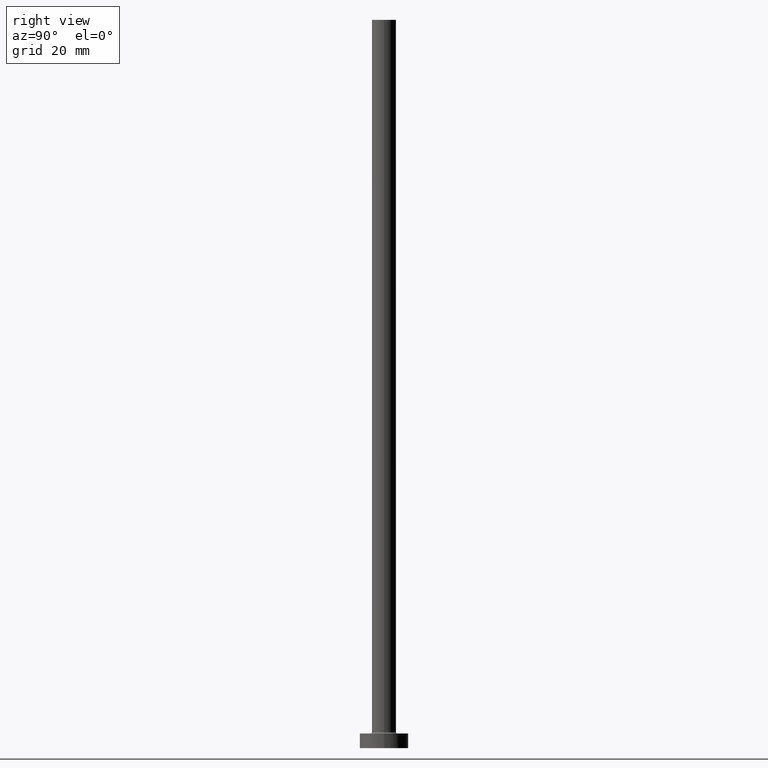
[diagram: clean part render]
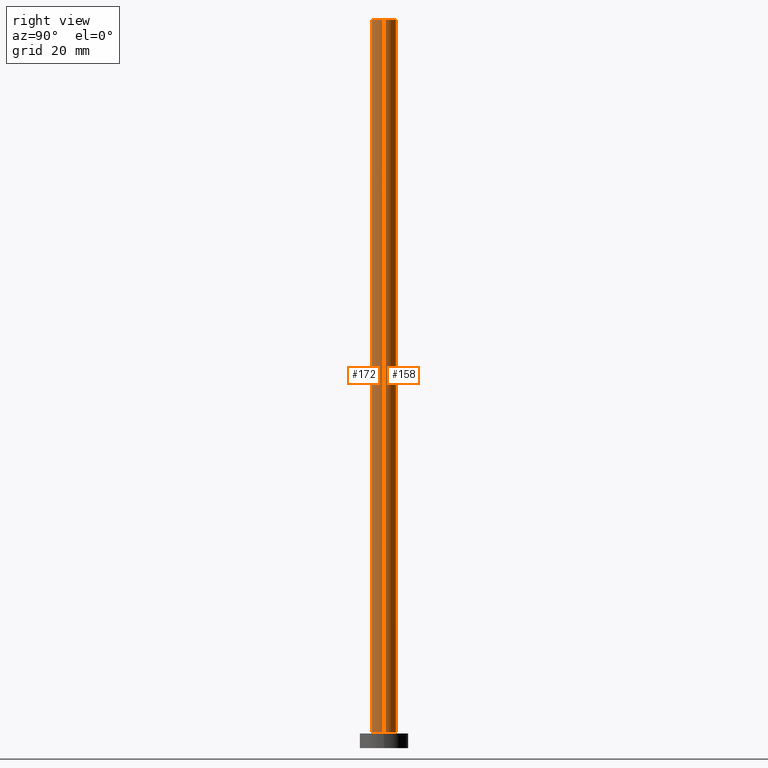
[diagram: same view with one multi-face feature highlighted, each face labeled with its STEP entity id]
A machine part, right view. The highlighted faces form ONE feature: a constant-radius fillet chain: 2 tangent blend faces with common blend radius 2.5 mm. The faces share edges in the B-rep.
Their STEP definitions:
[1] entity #172 (Cylinder):
#2 = DIRECTION ( 'NONE',  ( 0.000000000000000000, 0.000000000000000000, 1.000000000000000000 ) ) ;
#3 = VECTOR ( 'NONE', #459, 1000.000000000000000 ) ;
#9 = CARTESIAN_POINT ( 'NONE',  ( 0.000000000000000000, 0.000000000000000000, 150.0000000000000000 ) ) ;
#30 = DIRECTION ( 'NONE',  ( -1.000000000000000000, 0.000000000000000000, 0.000000000000000000 ) ) ;
#52 = ORIENTED_EDGE ( 'NONE', *, *, #342, .T. ) ;
#67 = CYLINDRICAL_SURFACE ( 'NONE', #70, 2.500000000000000000 ) ;
#70 = AXIS2_PLACEMENT_3D ( 'NONE', #202, #343, #30 ) ;
#87 = LINE ( 'NONE', #220, #119 ) ;
#111 = ORIENTED_EDGE ( 'NONE', *, *, #303, .F. ) ;
#119 = VECTOR ( 'NONE', #242, 1000.000000000000000 ) ;
#140 = DIRECTION ( 'NONE',  ( 1.000000000000000000, 0.000000000000000000, 0.000000000000000000 ) ) ;
#159 = AXIS2_PLACEMENT_3D ( 'NONE', #9, #315, #215 ) ;
#172 = ADVANCED_FACE ( 'NONE', ( #301 ), #67, .T. ) ;
#174 = CARTESIAN_POINT ( 'NONE',  ( 0.000000000000000000, 0.000000000000000000, 3.299999999999997158 ) ) ;
#178 = ORIENTED_EDGE ( 'NONE', *, *, #372, .F. ) ;
#202 = CARTESIAN_POINT ( 'NONE',  ( 0.000000000000000000, 0.000000000000000000, 150.0000000000000000 ) ) ;
#209 = CARTESIAN_POINT ( 'NONE',  ( -2.500000000000000000, 0.000000000000000000, 3.299999999999997158 ) ) ;
#210 = CARTESIAN_POINT ( 'NONE',  ( 2.500000000000000000, 3.061616997868383141E-16, 3.299999999999997158 ) ) ;
#215 = DIRECTION ( 'NONE',  ( 1.000000000000000000, 0.000000000000000000, 0.000000000000000000 ) ) ;
#217 = LINE ( 'NONE', #325, #3 ) ;
#220 = CARTESIAN_POINT ( 'NONE',  ( 2.500000000000000000, 3.061616997868383141E-16, 150.0000000000000000 ) ) ;
#242 = DIRECTION ( 'NONE',  ( -0.000000000000000000, -0.000000000000000000, -1.000000000000000000 ) ) ;
#275 = VERTEX_POINT ( 'NONE', #389 ) ;
#301 = FACE_OUTER_BOUND ( 'NONE', #386, .T. ) ;
#302 = CIRCLE ( 'NONE', #159, 2.500000000000000000 ) ;
#303 = EDGE_CURVE ( 'NONE', #275, #443, #302, .T. ) ;
#309 = EDGE_CURVE ( 'NONE', #275, #316, #217, .T. ) ;
#315 = DIRECTION ( 'NONE',  ( 0.000000000000000000, 0.000000000000000000, 1.000000000000000000 ) ) ;
#316 = VERTEX_POINT ( 'NONE', #209 ) ;
#325 = CARTESIAN_POINT ( 'NONE',  ( -2.500000000000000000, 0.000000000000000000, 150.0000000000000000 ) ) ;
#341 = CIRCLE ( 'NONE', #403, 2.500000000000000000 ) ;
#342 = EDGE_CURVE ( 'NONE', #316, #383, #341, .T. ) ;
#343 = DIRECTION ( 'NONE',  ( -0.000000000000000000, -0.000000000000000000, -1.000000000000000000 ) ) ;
#372 = EDGE_CURVE ( 'NONE', #443, #383, #87, .T. ) ;
#383 = VERTEX_POINT ( 'NONE', #210 ) ;
#386 = EDGE_LOOP ( 'NONE', ( #178, #111, #390, #52 ) ) ;
#389 = CARTESIAN_POINT ( 'NONE',  ( -2.500000000000000000, 0.000000000000000000, 150.0000000000000000 ) ) ;
#390 = ORIENTED_EDGE ( 'NONE', *, *, #309, .T. ) ;
#403 = AXIS2_PLACEMENT_3D ( 'NONE', #174, #2, #140 ) ;
#433 = CARTESIAN_POINT ( 'NONE',  ( 2.500000000000000000, 3.061616997868383141E-16, 150.0000000000000000 ) ) ;
#443 = VERTEX_POINT ( 'NONE', #433 ) ;
#459 = DIRECTION ( 'NONE',  ( -0.000000000000000000, -0.000000000000000000, -1.000000000000000000 ) ) ;
[2] entity #158 (Cylinder):
#3 = VECTOR ( 'NONE', #459, 1000.000000000000000 ) ;
#11 = AXIS2_PLACEMENT_3D ( 'NONE', #151, #441, #405 ) ;
#50 = DIRECTION ( 'NONE',  ( 1.000000000000000000, 0.000000000000000000, 0.000000000000000000 ) ) ;
#63 = DIRECTION ( 'NONE',  ( -0.000000000000000000, -0.000000000000000000, -1.000000000000000000 ) ) ;
#75 = EDGE_CURVE ( 'NONE', #443, #275, #101, .T. ) ;
#77 = DIRECTION ( 'NONE',  ( 0.000000000000000000, 0.000000000000000000, 1.000000000000000000 ) ) ;
#78 = AXIS2_PLACEMENT_3D ( 'NONE', #84, #77, #50 ) ;
#84 = CARTESIAN_POINT ( 'NONE',  ( 0.000000000000000000, 0.000000000000000000, 3.299999999999997158 ) ) ;
#87 = LINE ( 'NONE', #220, #119 ) ;
#101 = CIRCLE ( 'NONE', #11, 2.500000000000000000 ) ;
#119 = VECTOR ( 'NONE', #242, 1000.000000000000000 ) ;
#151 = CARTESIAN_POINT ( 'NONE',  ( 0.000000000000000000, 0.000000000000000000, 150.0000000000000000 ) ) ;
#158 = ADVANCED_FACE ( 'NONE', ( #268 ), #411, .T. ) ;
#209 = CARTESIAN_POINT ( 'NONE',  ( -2.500000000000000000, 0.000000000000000000, 3.299999999999997158 ) ) ;
#210 = CARTESIAN_POINT ( 'NONE',  ( 2.500000000000000000, 3.061616997868383141E-16, 3.299999999999997158 ) ) ;
#217 = LINE ( 'NONE', #325, #3 ) ;
#220 = CARTESIAN_POINT ( 'NONE',  ( 2.500000000000000000, 3.061616997868383141E-16, 150.0000000000000000 ) ) ;
#242 = DIRECTION ( 'NONE',  ( -0.000000000000000000, -0.000000000000000000, -1.000000000000000000 ) ) ;
#267 = CIRCLE ( 'NONE', #78, 2.500000000000000000 ) ;
#268 = FACE_OUTER_BOUND ( 'NONE', #362, .T. ) ;
#270 = ORIENTED_EDGE ( 'NONE', *, *, #399, .T. ) ;
#275 = VERTEX_POINT ( 'NONE', #389 ) ;
#307 = AXIS2_PLACEMENT_3D ( 'NONE', #421, #63, #380 ) ;
#309 = EDGE_CURVE ( 'NONE', #275, #316, #217, .T. ) ;
#316 = VERTEX_POINT ( 'NONE', #209 ) ;
#325 = CARTESIAN_POINT ( 'NONE',  ( -2.500000000000000000, 0.000000000000000000, 150.0000000000000000 ) ) ;
#354 = ORIENTED_EDGE ( 'NONE', *, *, #75, .F. ) ;
#362 = EDGE_LOOP ( 'NONE', ( #354, #461, #270, #446 ) ) ;
#372 = EDGE_CURVE ( 'NONE', #443, #383, #87, .T. ) ;
#380 = DIRECTION ( 'NONE',  ( -1.000000000000000000, 0.000000000000000000, 0.000000000000000000 ) ) ;
#383 = VERTEX_POINT ( 'NONE', #210 ) ;
#389 = CARTESIAN_POINT ( 'NONE',  ( -2.500000000000000000, 0.000000000000000000, 150.0000000000000000 ) ) ;
#399 = EDGE_CURVE ( 'NONE', #383, #316, #267, .T. ) ;
#405 = DIRECTION ( 'NONE',  ( 1.000000000000000000, 0.000000000000000000, 0.000000000000000000 ) ) ;
#411 = CYLINDRICAL_SURFACE ( 'NONE', #307, 2.500000000000000000 ) ;
#421 = CARTESIAN_POINT ( 'NONE',  ( 0.000000000000000000, 0.000000000000000000, 150.0000000000000000 ) ) ;
#433 = CARTESIAN_POINT ( 'NONE',  ( 2.500000000000000000, 3.061616997868383141E-16, 150.0000000000000000 ) ) ;
#441 = DIRECTION ( 'NONE',  ( 0.000000000000000000, 0.000000000000000000, 1.000000000000000000 ) ) ;
#443 = VERTEX_POINT ( 'NONE', #433 ) ;
#446 = ORIENTED_EDGE ( 'NONE', *, *, #309, .F. ) ;
#459 = DIRECTION ( 'NONE',  ( -0.000000000000000000, -0.000000000000000000, -1.000000000000000000 ) ) ;
#461 = ORIENTED_EDGE ( 'NONE', *, *, #372, .T. ) ;